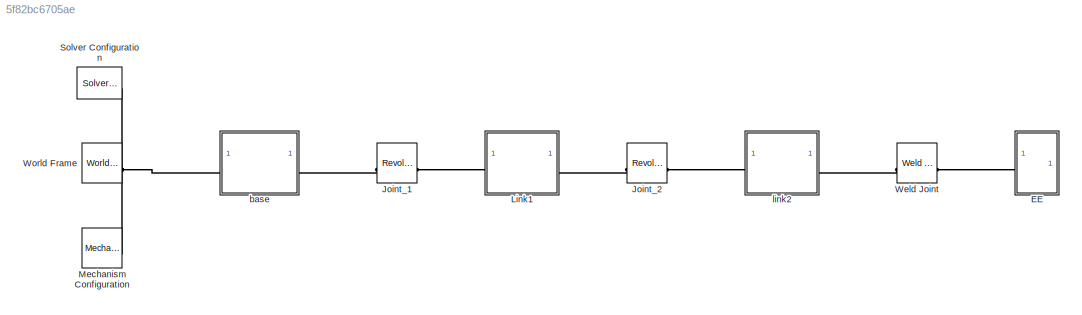
MODEL slx_5f82bc6705ae
KIND model
CONFIG AbsTol = auto
CONFIG EnableMultiTasking = off
CONFIG FixedStep = auto
CONFIG MaxStep = auto
CONFIG MinStep = auto
CONFIG RelTol = 1e-3
CONFIG SampleTimeConstraint = Unconstrained
CONFIG SolverName = VariableStepAuto
CONFIG StartTime = 0.0
CONFIG StopTime = 10.0
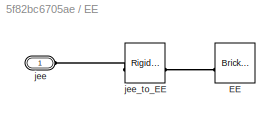
BLOCK [SubSystem] EE
BLOCK [Reference] EE/EE  REF=sm_lib/Body Elements/Brick Solid
  NameLocation = top
  SourceBlock = sm_lib/Body Elements/Brick Solid
  SourceType = Brick Solid
BLOCK [PMIOPort] EE/jee
  Side = Left
BLOCK [Reference] EE/jee_to_EE  REF=sm_lib/Frames and
Transforms/Rigid
Transform
  SourceBlock = sm_lib/Frames and\nTransforms/Rigid\nTransform
  SourceType = Rigid\nTransform
BLOCK [Reference] Joint_1  REF=sm_lib/Joints/Revolute Joint
  SourceBlock = sm_lib/Joints/Revolute Joint
  SourceType = Revolute Joint
BLOCK [Reference] Joint_2  REF=sm_lib/Joints/Revolute Joint
  SourceBlock = sm_lib/Joints/Revolute Joint
  SourceType = Revolute Joint
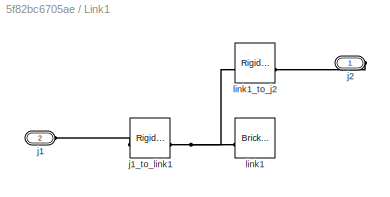
BLOCK [SubSystem] Link1
BLOCK [PMIOPort] Link1/j1
  Port = 2
  Side = Left
BLOCK [Reference] Link1/j1_to_link1  REF=sm_lib/Frames and
Transforms/Rigid
Transform
  SourceBlock = sm_lib/Frames and\nTransforms/Rigid\nTransform
  SourceType = Rigid\nTransform
BLOCK [PMIOPort] Link1/j2
  Side = Right
BLOCK [Reference] Link1/link1  REF=sm_lib/Body Elements/Brick Solid
  SourceBlock = sm_lib/Body Elements/Brick Solid
  SourceType = Brick Solid
BLOCK [Reference] Link1/link1_to_j2  REF=sm_lib/Frames and
Transforms/Rigid
Transform
  SourceBlock = sm_lib/Frames and\nTransforms/Rigid\nTransform
  SourceType = Rigid\nTransform
BLOCK [Reference] Mechanism Configuration  REF=sm_lib/Utilities/Mechanism
Configuration
  SourceBlock = sm_lib/Utilities/Mechanism\nConfiguration
  SourceType = Mechanism\nConfiguration
BLOCK [Reference] Solver Configuration  REF=nesl_utility/Solver
Configuration
  SourceBlock = nesl_utility/Solver\nConfiguration
  SourceType = Solver\nConfiguration
BLOCK [Reference] Weld Joint  REF=sm_lib/Joints/Weld Joint
  SourceBlock = sm_lib/Joints/Weld Joint
  SourceType = Weld Joint
BLOCK [Reference] World Frame  REF=sm_lib/Frames and
Transforms/World Frame
  SourceBlock = sm_lib/Frames and\nTransforms/World Frame
  SourceType = World Frame
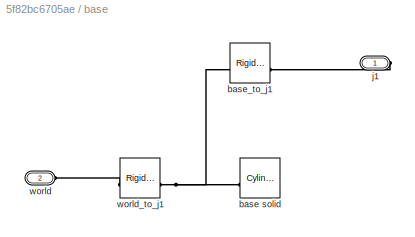
BLOCK [SubSystem] base
BLOCK [Reference] base/base solid  REF=sm_lib/Body Elements/Cylindrical Solid
  NameLocation = top
  SourceBlock = sm_lib/Body Elements/Cylindrical Solid
  SourceType = Cylindrical Solid
BLOCK [Reference] base/base_to_j1  REF=sm_lib/Frames and
Transforms/Rigid
Transform
  SourceBlock = sm_lib/Frames and\nTransforms/Rigid\nTransform
  SourceType = Rigid\nTransform
BLOCK [PMIOPort] base/j1
  Side = Right
BLOCK [PMIOPort] base/world
  Port = 2
  Side = Left
BLOCK [Reference] base/world_to_j1  REF=sm_lib/Frames and
Transforms/Rigid
Transform
  SourceBlock = sm_lib/Frames and\nTransforms/Rigid\nTransform
  SourceType = Rigid\nTransform
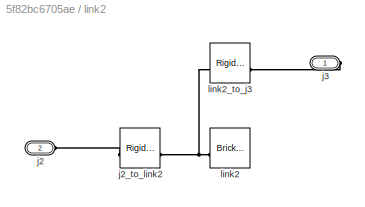
BLOCK [SubSystem] link2
BLOCK [PMIOPort] link2/j2
  Port = 2
  Side = Left
BLOCK [Reference] link2/j2_to_link2  REF=sm_lib/Frames and
Transforms/Rigid
Transform
  SourceBlock = sm_lib/Frames and\nTransforms/Rigid\nTransform
  SourceType = Rigid\nTransform
BLOCK [PMIOPort] link2/j3
  Side = Right
BLOCK [Reference] link2/link2  REF=sm_lib/Body Elements/Brick Solid
  SourceBlock = sm_lib/Body Elements/Brick Solid
  SourceType = Brick Solid
BLOCK [Reference] link2/link2_to_j3  REF=sm_lib/Frames and
Transforms/Rigid
Transform
  SourceBlock = sm_lib/Frames and\nTransforms/Rigid\nTransform
  SourceType = Rigid\nTransform
PLINE EE/EE:RConn1 -- EE/jee_to_EE:RConn1
PLINE EE/jee:RConn1 -- EE/jee_to_EE:LConn1
PLINE EE:LConn1 -- Weld Joint:RConn1
PLINE Joint_1:LConn1 -- base:RConn1
PLINE Joint_1:RConn1 -- Link1:LConn1
PLINE Joint_2:LConn1 -- Link1:RConn1
PLINE Joint_2:RConn1 -- link2:LConn1
PLINE Link1/j1:RConn1 -- Link1/j1_to_link1:LConn1
PNET net1: Link1/j1_to_link1:RConn1 -- Link1/link1:RConn1 -- Link1/link1_to_j2:LConn1
PLINE Link1/j2:RConn1 -- Link1/link1_to_j2:RConn1
PNET net2: Mechanism Configuration:RConn1 -- Solver Configuration:RConn1 -- World Frame:RConn1 -- base:LConn1
PLINE Weld Joint:LConn1 -- link2:RConn1
PNET net3: base/base solid:RConn1 -- base/base_to_j1:LConn1 -- base/world_to_j1:RConn1
PLINE base/base_to_j1:RConn1 -- base/j1:RConn1
PLINE base/world:RConn1 -- base/world_to_j1:LConn1
PLINE link2/j2:RConn1 -- link2/j2_to_link2:LConn1
PNET net4: link2/j2_to_link2:RConn1 -- link2/link2:RConn1 -- link2/link2_to_j3:LConn1
PLINE link2/j3:RConn1 -- link2/link2_to_j3:RConn1
note: PNET lines group multi-terminal physical nets as a canonical sorted terminal list (undirected conserving connections); 2-terminal nets keep the pairwise PLINE form
